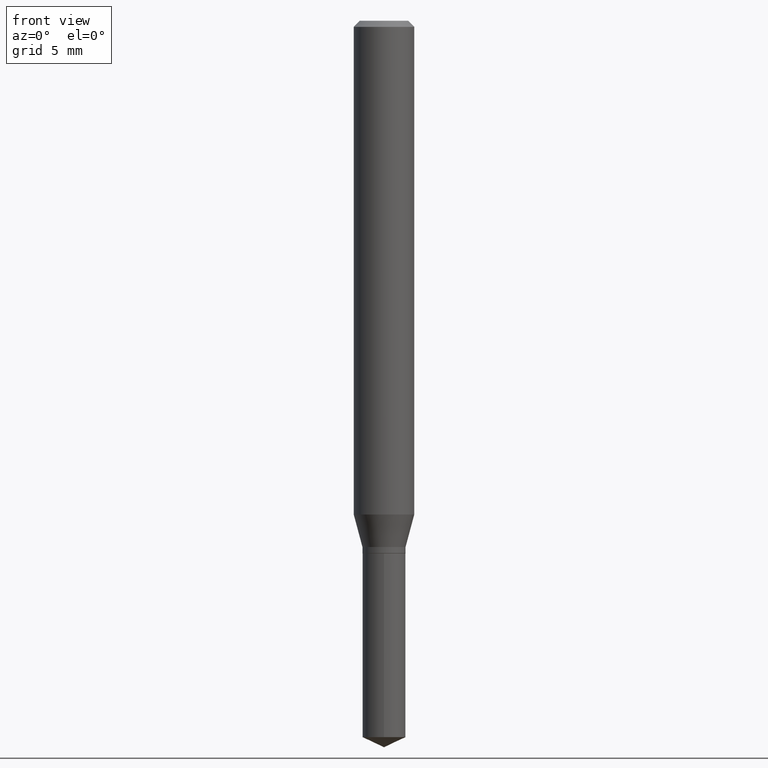
[diagram: clean part render]
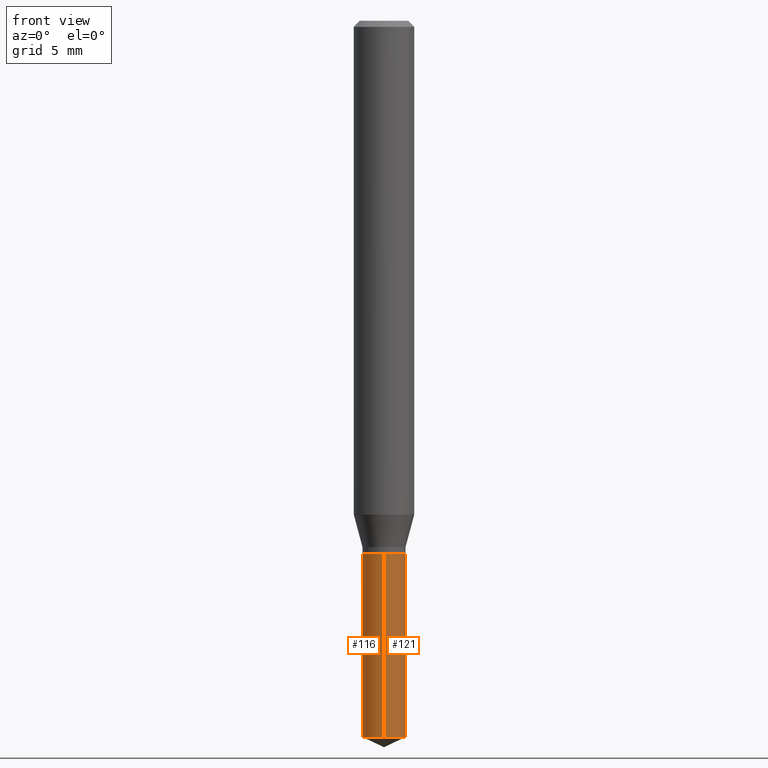
[diagram: same view with one multi-face feature highlighted, each face labeled with its STEP entity id]
A machine part, front view. The highlighted faces form ONE feature: a constant-radius fillet chain: 2 tangent blend faces with common blend radius 1.1303 mm. The faces share edges in the B-rep.
Their STEP definitions:
[1] entity #121 (Cylinder):
#2 = DIRECTION ( 'NONE',  ( -6.982962677686265922E-15, -1.000000000000000000, 6.138984255425310648E-15 ) ) ;
#9 = EDGE_CURVE ( 'NONE', #449, #401, #156, .T. ) ;
#10 = CARTESIAN_POINT ( 'NONE',  ( -3.107418391570026875E-16, -0.04450000000000516043, -1.479249309212102403 ) ) ;
#47 = EDGE_CURVE ( 'NONE', #182, #109, #202, .T. ) ;
#52 = VECTOR ( 'NONE', #89, 39.37007874015748143 ) ;
#68 = CARTESIAN_POINT ( 'NONE',  ( 3.161915174132713890E-16, 0.04449999999999615374, -1.100000000000000089 ) ) ;
#69 = ORIENTED_EDGE ( 'NONE', *, *, #279, .T. ) ;
#89 = DIRECTION ( 'NONE',  ( -2.445399690415121810E-29, 3.491580316559632610E-15, 1.000000000000000000 ) ) ;
#109 = VERTEX_POINT ( 'NONE', #205 ) ;
#121 = ADVANCED_FACE ( 'NONE', ( #276 ), #200, .T. ) ;
#138 = AXIS2_PLACEMENT_3D ( 'NONE', #240, #164, #281 ) ;
#139 = EDGE_CURVE ( 'NONE', #182, #449, #242, .T. ) ;
#156 = CIRCLE ( 'NONE', #353, 0.04449999999999999789 ) ;
#164 = DIRECTION ( 'NONE',  ( -2.445399690415121530E-29, 3.491580316559632610E-15, 1.000000000000000000 ) ) ;
#173 = DIRECTION ( 'NONE',  ( -2.445399690415121810E-29, 3.491580316559632610E-15, 1.000000000000000000 ) ) ;
#182 = VERTEX_POINT ( 'NONE', #10 ) ;
#187 = CARTESIAN_POINT ( 'NONE',  ( 2.690015686803650369E-29, -3.840629472727460101E-15, -1.100000000000000089 ) ) ;
#196 = CARTESIAN_POINT ( 'NONE',  ( 3.617431830141075089E-29, -5.164808895841274999E-15, -1.479249309212102625 ) ) ;
#200 = CYLINDRICAL_SURFACE ( 'NONE', #138, 0.04449999999999999789 ) ;
#202 = CIRCLE ( 'NONE', #457, 0.04449999999999999789 ) ;
#205 = CARTESIAN_POINT ( 'NONE',  ( 3.161915174132806581E-16, 0.04449999999999482841, -1.479249309212102848 ) ) ;
#240 = CARTESIAN_POINT ( 'NONE',  ( 2.690015686803650369E-29, -3.840629472727460101E-15, -1.100000000000000089 ) ) ;
#242 = LINE ( 'NONE', #463, #52 ) ;
#246 = ORIENTED_EDGE ( 'NONE', *, *, #9, .F. ) ;
#276 = FACE_OUTER_BOUND ( 'NONE', #362, .T. ) ;
#279 = EDGE_CURVE ( 'NONE', #109, #401, #406, .T. ) ;
#281 = DIRECTION ( 'NONE',  ( -6.982962677686265922E-15, -1.000000000000000000, 3.069492127712655324E-15 ) ) ;
#294 = ORIENTED_EDGE ( 'NONE', *, *, #139, .F. ) ;
#338 = DIRECTION ( 'NONE',  ( -2.445399690415121530E-29, 3.491580316559632610E-15, 1.000000000000000000 ) ) ;
#340 = VECTOR ( 'NONE', #173, 39.37007874015748143 ) ;
#353 = AXIS2_PLACEMENT_3D ( 'NONE', #187, #338, #461 ) ;
#362 = EDGE_LOOP ( 'NONE', ( #379, #69, #246, #294 ) ) ;
#379 = ORIENTED_EDGE ( 'NONE', *, *, #47, .T. ) ;
#380 = DIRECTION ( 'NONE',  ( -2.445399690415121530E-29, 3.491580316559632610E-15, 1.000000000000000000 ) ) ;
#401 = VERTEX_POINT ( 'NONE', #447 ) ;
#406 = LINE ( 'NONE', #68, #340 ) ;
#418 = CARTESIAN_POINT ( 'NONE',  ( -3.107418391570119566E-16, -0.04450000000000383510, -1.099999999999999867 ) ) ;
#447 = CARTESIAN_POINT ( 'NONE',  ( 3.161915174132807074E-16, 0.04449999999999615374, -1.100000000000000089 ) ) ;
#449 = VERTEX_POINT ( 'NONE', #418 ) ;
#457 = AXIS2_PLACEMENT_3D ( 'NONE', #196, #380, #2 ) ;
#461 = DIRECTION ( 'NONE',  ( -6.982962677686265922E-15, -1.000000000000000000, 3.069492127712655324E-15 ) ) ;
#463 = CARTESIAN_POINT ( 'NONE',  ( -3.107418391570119566E-16, -0.04450000000000383510, -1.099999999999999867 ) ) ;
[2] entity #116 (Cylinder):
#7 = EDGE_LOOP ( 'NONE', ( #80, #142, #286, #357 ) ) ;
#8 = FACE_OUTER_BOUND ( 'NONE', #7, .T. ) ;
#10 = CARTESIAN_POINT ( 'NONE',  ( -3.107418391570026875E-16, -0.04450000000000516043, -1.479249309212102403 ) ) ;
#12 = AXIS2_PLACEMENT_3D ( 'NONE', #192, #194, #36 ) ;
#29 = CARTESIAN_POINT ( 'NONE',  ( 3.617431830141075089E-29, -5.164808895841274999E-15, -1.479249309212102625 ) ) ;
#36 = DIRECTION ( 'NONE',  ( -6.982962677686265922E-15, -1.000000000000000000, 3.069492127712655324E-15 ) ) ;
#46 = CIRCLE ( 'NONE', #402, 0.04449999999999999789 ) ;
#50 = DIRECTION ( 'NONE',  ( -6.982962677686265922E-15, -1.000000000000000000, 3.069492127712655324E-15 ) ) ;
#52 = VECTOR ( 'NONE', #89, 39.37007874015748143 ) ;
#68 = CARTESIAN_POINT ( 'NONE',  ( 3.161915174132713890E-16, 0.04449999999999615374, -1.100000000000000089 ) ) ;
#80 = ORIENTED_EDGE ( 'NONE', *, *, #279, .F. ) ;
#86 = DIRECTION ( 'NONE',  ( -2.445399690415121530E-29, 3.491580316559632610E-15, 1.000000000000000000 ) ) ;
#89 = DIRECTION ( 'NONE',  ( -2.445399690415121810E-29, 3.491580316559632610E-15, 1.000000000000000000 ) ) ;
#109 = VERTEX_POINT ( 'NONE', #205 ) ;
#116 = ADVANCED_FACE ( 'NONE', ( #8 ), #352, .T. ) ;
#139 = EDGE_CURVE ( 'NONE', #182, #449, #242, .T. ) ;
#142 = ORIENTED_EDGE ( 'NONE', *, *, #376, .T. ) ;
#159 = CARTESIAN_POINT ( 'NONE',  ( 2.690015686803650369E-29, -3.840629472727460101E-15, -1.100000000000000089 ) ) ;
#173 = DIRECTION ( 'NONE',  ( -2.445399690415121810E-29, 3.491580316559632610E-15, 1.000000000000000000 ) ) ;
#182 = VERTEX_POINT ( 'NONE', #10 ) ;
#192 = CARTESIAN_POINT ( 'NONE',  ( 2.690015686803650369E-29, -3.840629472727460101E-15, -1.100000000000000089 ) ) ;
#194 = DIRECTION ( 'NONE',  ( -2.445399690415121530E-29, 3.491580316559632610E-15, 1.000000000000000000 ) ) ;
#205 = CARTESIAN_POINT ( 'NONE',  ( 3.161915174132806581E-16, 0.04449999999999482841, -1.479249309212102848 ) ) ;
#209 = AXIS2_PLACEMENT_3D ( 'NONE', #159, #86, #50 ) ;
#242 = LINE ( 'NONE', #463, #52 ) ;
#244 = CIRCLE ( 'NONE', #12, 0.04449999999999999789 ) ;
#251 = DIRECTION ( 'NONE',  ( -2.445399690415121530E-29, 3.491580316559632610E-15, 1.000000000000000000 ) ) ;
#257 = DIRECTION ( 'NONE',  ( -6.982962677686265922E-15, -1.000000000000000000, 6.138984255425310648E-15 ) ) ;
#279 = EDGE_CURVE ( 'NONE', #109, #401, #406, .T. ) ;
#286 = ORIENTED_EDGE ( 'NONE', *, *, #139, .T. ) ;
#340 = VECTOR ( 'NONE', #173, 39.37007874015748143 ) ;
#352 = CYLINDRICAL_SURFACE ( 'NONE', #209, 0.04449999999999999789 ) ;
#357 = ORIENTED_EDGE ( 'NONE', *, *, #455, .F. ) ;
#376 = EDGE_CURVE ( 'NONE', #109, #182, #46, .T. ) ;
#401 = VERTEX_POINT ( 'NONE', #447 ) ;
#402 = AXIS2_PLACEMENT_3D ( 'NONE', #29, #251, #257 ) ;
#406 = LINE ( 'NONE', #68, #340 ) ;
#418 = CARTESIAN_POINT ( 'NONE',  ( -3.107418391570119566E-16, -0.04450000000000383510, -1.099999999999999867 ) ) ;
#447 = CARTESIAN_POINT ( 'NONE',  ( 3.161915174132807074E-16, 0.04449999999999615374, -1.100000000000000089 ) ) ;
#449 = VERTEX_POINT ( 'NONE', #418 ) ;
#455 = EDGE_CURVE ( 'NONE', #401, #449, #244, .T. ) ;
#463 = CARTESIAN_POINT ( 'NONE',  ( -3.107418391570119566E-16, -0.04450000000000383510, -1.099999999999999867 ) ) ;